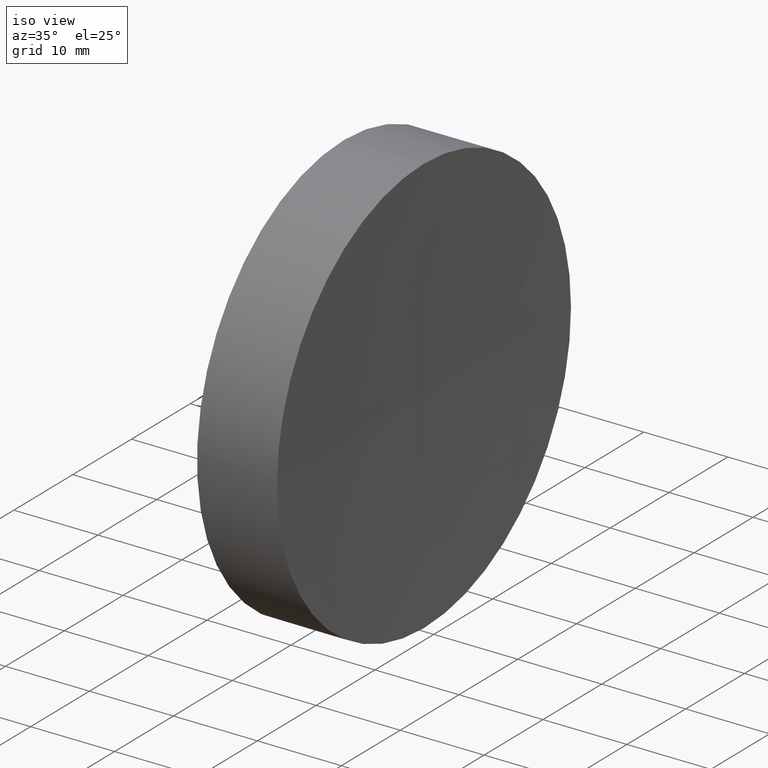
[diagram: clean part render]
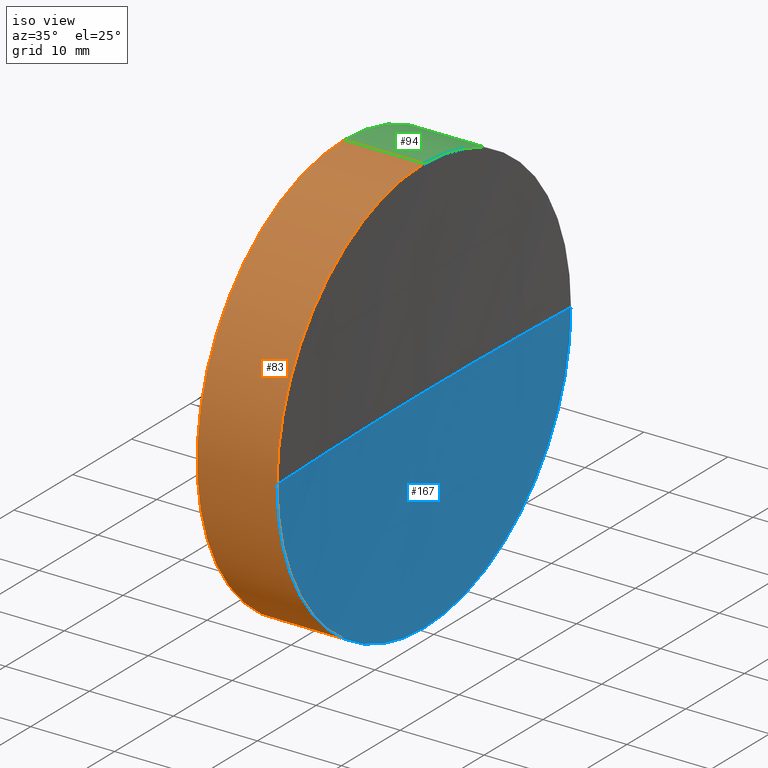
[diagram: same view with three faces highlighted in distinct colors, each labeled with its STEP entity id]
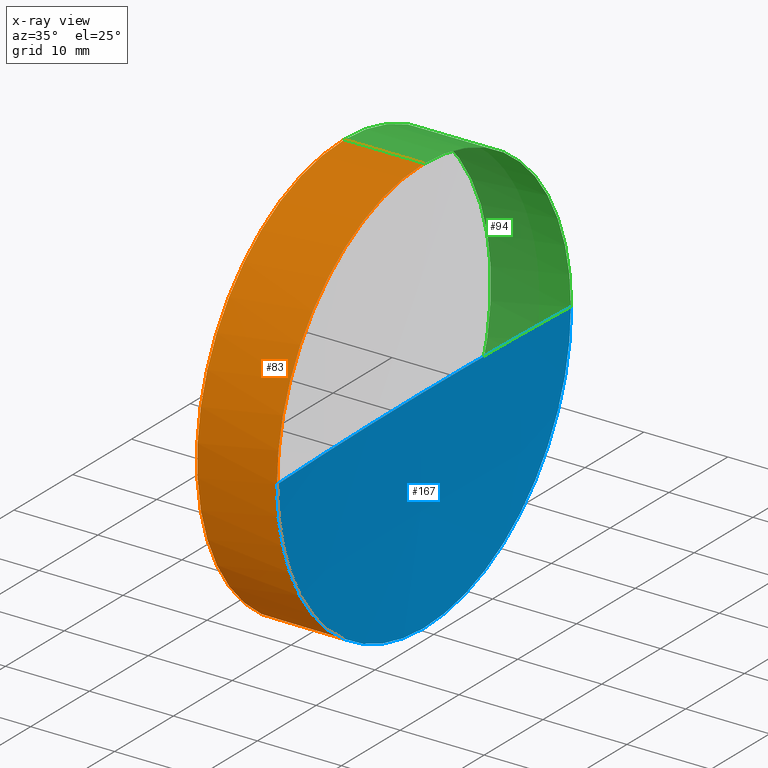
[diagram: x-ray of the same camera — body ghosted, the three highlighted faces saturated]
A machine part, iso view with three faces highlighted in distinct colors.
The next image is the same camera in x-ray (body ghosted, the three faces saturated) — at least one of them is partly hidden behind the body in this view.
Their STEP definitions:

[orange] entity #83 — the highlighted cylindrical surface (partial cylindrical patch) has radius 25 mm, axis along (-1, -0, -0).
#2 = CARTESIAN_POINT ( 'NONE',  ( 217.9702860043302100, 138.7560422467448700, 24.99999999999999300 ) ) ;
#8 = AXIS2_PLACEMENT_3D ( 'NONE', #99, #114, #171 ) ;
#11 = EDGE_CURVE ( 'NONE', #30, #183, #135, .T. ) ;
#14 = DIRECTION ( 'NONE',  ( 0.0000000000000000000, 0.0000000000000000000, 1.000000000000000000 ) ) ;
#15 = CARTESIAN_POINT ( 'NONE',  ( 239.7063708809449700, 138.7560422467448700, -24.99999999999999300 ) ) ;
#21 = EDGE_CURVE ( 'NONE', #30, #175, #52, .T. ) ;
#25 = EDGE_CURVE ( 'NONE', #38, #122, #73, .T. ) ;
#28 = DIRECTION ( 'NONE',  ( -1.000000000000000000, -0.0000000000000000000, -0.0000000000000000000 ) ) ;
#30 = VERTEX_POINT ( 'NONE', #15 ) ;
#34 = VECTOR ( 'NONE', #185, 1000.000000000000000 ) ;
#38 = VERTEX_POINT ( 'NONE', #115 ) ;
#41 = DIRECTION ( 'NONE',  ( 0.0000000000000000000, 0.0000000000000000000, 1.000000000000000000 ) ) ;
#52 = CIRCLE ( 'NONE', #75, 24.99999999999999300 ) ;
#54 = ORIENTED_EDGE ( 'NONE', *, *, #21, .T. ) ;
#59 = ORIENTED_EDGE ( 'NONE', *, *, #11, .F. ) ;
#60 = FACE_OUTER_BOUND ( 'NONE', #113, .T. ) ;
#62 = ORIENTED_EDGE ( 'NONE', *, *, #104, .F. ) ;
#63 = DIRECTION ( 'NONE',  ( -1.000000000000000000, -0.0000000000000000000, -0.0000000000000000000 ) ) ;
#66 = DIRECTION ( 'NONE',  ( -1.000000000000000000, -0.0000000000000000000, -0.0000000000000000000 ) ) ;
#69 = CARTESIAN_POINT ( 'NONE',  ( 239.7063708809449700, 138.7560422467448700, 0.0000000000000000000 ) ) ;
#73 = LINE ( 'NONE', #2, #34 ) ;
#75 = AXIS2_PLACEMENT_3D ( 'NONE', #137, #63, #41 ) ;
#83 = ADVANCED_FACE ( 'NONE', ( #60 ), #105, .T. ) ;
#85 = CARTESIAN_POINT ( 'NONE',  ( 230.1853110698390300, 138.7560422467448700, 24.99999999999999300 ) ) ;
#86 = ORIENTED_EDGE ( 'NONE', *, *, #134, .T. ) ;
#93 = VECTOR ( 'NONE', #66, 1000.000000000000000 ) ;
#98 = CARTESIAN_POINT ( 'NONE',  ( 230.1853110698390300, 138.7560422467448700, 0.0000000000000000000 ) ) ;
#99 = CARTESIAN_POINT ( 'NONE',  ( 217.9702860043302100, 138.7560422467448700, 0.0000000000000000000 ) ) ;
#104 = EDGE_CURVE ( 'NONE', #183, #122, #108, .T. ) ;
#105 = CYLINDRICAL_SURFACE ( 'NONE', #8, 24.99999999999999300 ) ;
#108 = CIRCLE ( 'NONE', #184, 24.99999999999999300 ) ;
#113 = EDGE_LOOP ( 'NONE', ( #59, #54, #86, #144, #62 ) ) ;
#114 = DIRECTION ( 'NONE',  ( -1.000000000000000000, -0.0000000000000000000, -0.0000000000000000000 ) ) ;
#115 = CARTESIAN_POINT ( 'NONE',  ( 239.7063708809449700, 138.7560422467448700, 24.99999999999999300 ) ) ;
#119 = CARTESIAN_POINT ( 'NONE',  ( 230.1853110698390300, 138.7560422467448700, -24.99999999999999300 ) ) ;
#122 = VERTEX_POINT ( 'NONE', #85 ) ;
#124 = CARTESIAN_POINT ( 'NONE',  ( 217.9702860043302100, 138.7560422467448700, -24.99999999999999300 ) ) ;
#128 = CARTESIAN_POINT ( 'NONE',  ( 239.7063708809450000, 113.7560422467444600, 0.0000000000000000000 ) ) ;
#134 = EDGE_CURVE ( 'NONE', #175, #38, #164, .T. ) ;
#135 = LINE ( 'NONE', #124, #93 ) ;
#137 = CARTESIAN_POINT ( 'NONE',  ( 239.7063708809449700, 138.7560422467448700, 0.0000000000000000000 ) ) ;
#141 = DIRECTION ( 'NONE',  ( -1.000000000000000000, -0.0000000000000000000, -0.0000000000000000000 ) ) ;
#144 = ORIENTED_EDGE ( 'NONE', *, *, #25, .T. ) ;
#164 = CIRCLE ( 'NONE', #166, 24.99999999999999300 ) ;
#166 = AXIS2_PLACEMENT_3D ( 'NONE', #69, #28, #172 ) ;
#171 = DIRECTION ( 'NONE',  ( 0.0000000000000000000, 0.0000000000000000000, 1.000000000000000000 ) ) ;
#172 = DIRECTION ( 'NONE',  ( 0.0000000000000000000, 0.0000000000000000000, 1.000000000000000000 ) ) ;
#175 = VERTEX_POINT ( 'NONE', #128 ) ;
#183 = VERTEX_POINT ( 'NONE', #119 ) ;
#184 = AXIS2_PLACEMENT_3D ( 'NONE', #98, #141, #14 ) ;
#185 = DIRECTION ( 'NONE',  ( -1.000000000000000000, -0.0000000000000000000, -0.0000000000000000000 ) ) ;

[blue] entity #167 — the highlighted spherical surface has radius 600 mm.
#5 = DIRECTION ( 'NONE',  ( 0.0000000000000000000, 0.0000000000000000000, 1.000000000000000000 ) ) ;
#7 = VERTEX_POINT ( 'NONE', #169 ) ;
#9 = SPHERICAL_SURFACE ( 'NONE', #61, 600.0000000000000000 ) ;
#15 = CARTESIAN_POINT ( 'NONE',  ( 239.7063708809449700, 138.7560422467448700, -24.99999999999999300 ) ) ;
#21 = EDGE_CURVE ( 'NONE', #30, #175, #52, .T. ) ;
#22 = EDGE_LOOP ( 'NONE', ( #117, #68, #110, #125 ) ) ;
#23 = VERTEX_POINT ( 'NONE', #155 ) ;
#30 = VERTEX_POINT ( 'NONE', #15 ) ;
#41 = DIRECTION ( 'NONE',  ( 0.0000000000000000000, 0.0000000000000000000, 1.000000000000000000 ) ) ;
#43 = DIRECTION ( 'NONE',  ( 0.0000000000000000000, 0.0000000000000000000, -1.000000000000000000 ) ) ;
#48 = CARTESIAN_POINT ( 'NONE',  ( 839.1853112950349200, 138.7560422467449000, 0.0000000000000000000 ) ) ;
#52 = CIRCLE ( 'NONE', #75, 24.99999999999999300 ) ;
#61 = AXIS2_PLACEMENT_3D ( 'NONE', #178, #5, #157 ) ;
#63 = DIRECTION ( 'NONE',  ( -1.000000000000000000, -0.0000000000000000000, -0.0000000000000000000 ) ) ;
#68 = ORIENTED_EDGE ( 'NONE', *, *, #179, .T. ) ;
#75 = AXIS2_PLACEMENT_3D ( 'NONE', #137, #63, #41 ) ;
#77 = CIRCLE ( 'NONE', #162, 600.0000000000000000 ) ;
#80 = FACE_OUTER_BOUND ( 'NONE', #22, .T. ) ;
#90 = DIRECTION ( 'NONE',  ( 0.0000000000000000000, -1.224646799147353200E-016, 1.000000000000000000 ) ) ;
#101 = DIRECTION ( 'NONE',  ( -1.000000000000000000, -0.0000000000000000000, -0.0000000000000000000 ) ) ;
#103 = DIRECTION ( 'NONE',  ( 0.0000000000000000000, 0.0000000000000000000, 1.000000000000000000 ) ) ;
#106 = AXIS2_PLACEMENT_3D ( 'NONE', #48, #43, #147 ) ;
#110 = ORIENTED_EDGE ( 'NONE', *, *, #152, .F. ) ;
#116 = CARTESIAN_POINT ( 'NONE',  ( 839.1853112950349200, 138.7560422467449000, 0.0000000000000000000 ) ) ;
#117 = ORIENTED_EDGE ( 'NONE', *, *, #150, .F. ) ;
#125 = ORIENTED_EDGE ( 'NONE', *, *, #21, .F. ) ;
#128 = CARTESIAN_POINT ( 'NONE',  ( 239.7063708809450000, 113.7560422467444600, 0.0000000000000000000 ) ) ;
#130 = DIRECTION ( 'NONE',  ( 0.0000000000000000000, -1.000000000000000000, -1.224646799147353200E-016 ) ) ;
#136 = CIRCLE ( 'NONE', #106, 600.0000000000000000 ) ;
#137 = CARTESIAN_POINT ( 'NONE',  ( 239.7063708809449700, 138.7560422467448700, 0.0000000000000000000 ) ) ;
#147 = DIRECTION ( 'NONE',  ( -1.000000000000000000, 0.0000000000000000000, 0.0000000000000000000 ) ) ;
#150 = EDGE_CURVE ( 'NONE', #7, #30, #156, .T. ) ;
#152 = EDGE_CURVE ( 'NONE', #175, #23, #136, .T. ) ;
#155 = CARTESIAN_POINT ( 'NONE',  ( 239.1853112950349500, 138.7560422467448700, 0.0000000000000000000 ) ) ;
#156 = CIRCLE ( 'NONE', #173, 24.99999999999999300 ) ;
#157 = DIRECTION ( 'NONE',  ( 0.0000000000000000000, -1.000000000000000000, 0.0000000000000000000 ) ) ;
#162 = AXIS2_PLACEMENT_3D ( 'NONE', #116, #90, #130 ) ;
#167 = ADVANCED_FACE ( 'NONE', ( #80 ), #9, .F. ) ;
#169 = CARTESIAN_POINT ( 'NONE',  ( 239.7063708809450000, 163.7560422467453000, 3.061616997868432700E-015 ) ) ;
#173 = AXIS2_PLACEMENT_3D ( 'NONE', #176, #101, #103 ) ;
#175 = VERTEX_POINT ( 'NONE', #128 ) ;
#176 = CARTESIAN_POINT ( 'NONE',  ( 239.7063708809449700, 138.7560422467448700, 0.0000000000000000000 ) ) ;
#178 = CARTESIAN_POINT ( 'NONE',  ( 839.1853112950349200, 138.7560422467449000, 0.0000000000000000000 ) ) ;
#179 = EDGE_CURVE ( 'NONE', #7, #23, #77, .T. ) ;

[green] entity #94 — the highlighted cylindrical surface (partial cylindrical patch) has radius 25 mm, axis along (-1, -0, -0).
#2 = CARTESIAN_POINT ( 'NONE',  ( 217.9702860043302100, 138.7560422467448700, 24.99999999999999300 ) ) ;
#7 = VERTEX_POINT ( 'NONE', #169 ) ;
#11 = EDGE_CURVE ( 'NONE', #30, #183, #135, .T. ) ;
#15 = CARTESIAN_POINT ( 'NONE',  ( 239.7063708809449700, 138.7560422467448700, -24.99999999999999300 ) ) ;
#17 = AXIS2_PLACEMENT_3D ( 'NONE', #26, #39, #87 ) ;
#24 = CARTESIAN_POINT ( 'NONE',  ( 217.9702860043302100, 138.7560422467448700, 0.0000000000000000000 ) ) ;
#25 = EDGE_CURVE ( 'NONE', #38, #122, #73, .T. ) ;
#26 = CARTESIAN_POINT ( 'NONE',  ( 239.7063708809449700, 138.7560422467448700, 0.0000000000000000000 ) ) ;
#27 = AXIS2_PLACEMENT_3D ( 'NONE', #24, #65, #139 ) ;
#30 = VERTEX_POINT ( 'NONE', #15 ) ;
#33 = EDGE_CURVE ( 'NONE', #38, #7, #79, .T. ) ;
#34 = VECTOR ( 'NONE', #185, 1000.000000000000000 ) ;
#38 = VERTEX_POINT ( 'NONE', #115 ) ;
#39 = DIRECTION ( 'NONE',  ( -1.000000000000000000, -0.0000000000000000000, -0.0000000000000000000 ) ) ;
#47 = AXIS2_PLACEMENT_3D ( 'NONE', #81, #112, #92 ) ;
#49 = ORIENTED_EDGE ( 'NONE', *, *, #126, .F. ) ;
#64 = CYLINDRICAL_SURFACE ( 'NONE', #27, 24.99999999999999300 ) ;
#65 = DIRECTION ( 'NONE',  ( -1.000000000000000000, -0.0000000000000000000, -0.0000000000000000000 ) ) ;
#66 = DIRECTION ( 'NONE',  ( -1.000000000000000000, -0.0000000000000000000, -0.0000000000000000000 ) ) ;
#73 = LINE ( 'NONE', #2, #34 ) ;
#79 = CIRCLE ( 'NONE', #17, 24.99999999999999300 ) ;
#81 = CARTESIAN_POINT ( 'NONE',  ( 230.1853110698390300, 138.7560422467448700, 0.0000000000000000000 ) ) ;
#85 = CARTESIAN_POINT ( 'NONE',  ( 230.1853110698390300, 138.7560422467448700, 24.99999999999999300 ) ) ;
#87 = DIRECTION ( 'NONE',  ( 0.0000000000000000000, 0.0000000000000000000, 1.000000000000000000 ) ) ;
#92 = DIRECTION ( 'NONE',  ( 0.0000000000000000000, 0.0000000000000000000, 1.000000000000000000 ) ) ;
#93 = VECTOR ( 'NONE', #66, 1000.000000000000000 ) ;
#94 = ADVANCED_FACE ( 'NONE', ( #154 ), #64, .T. ) ;
#101 = DIRECTION ( 'NONE',  ( -1.000000000000000000, -0.0000000000000000000, -0.0000000000000000000 ) ) ;
#103 = DIRECTION ( 'NONE',  ( 0.0000000000000000000, 0.0000000000000000000, 1.000000000000000000 ) ) ;
#107 = ORIENTED_EDGE ( 'NONE', *, *, #11, .T. ) ;
#112 = DIRECTION ( 'NONE',  ( -1.000000000000000000, -0.0000000000000000000, -0.0000000000000000000 ) ) ;
#115 = CARTESIAN_POINT ( 'NONE',  ( 239.7063708809449700, 138.7560422467448700, 24.99999999999999300 ) ) ;
#119 = CARTESIAN_POINT ( 'NONE',  ( 230.1853110698390300, 138.7560422467448700, -24.99999999999999300 ) ) ;
#122 = VERTEX_POINT ( 'NONE', #85 ) ;
#124 = CARTESIAN_POINT ( 'NONE',  ( 217.9702860043302100, 138.7560422467448700, -24.99999999999999300 ) ) ;
#126 = EDGE_CURVE ( 'NONE', #122, #183, #181, .T. ) ;
#132 = ORIENTED_EDGE ( 'NONE', *, *, #25, .F. ) ;
#135 = LINE ( 'NONE', #124, #93 ) ;
#139 = DIRECTION ( 'NONE',  ( 0.0000000000000000000, 0.0000000000000000000, 1.000000000000000000 ) ) ;
#140 = ORIENTED_EDGE ( 'NONE', *, *, #33, .T. ) ;
#150 = EDGE_CURVE ( 'NONE', #7, #30, #156, .T. ) ;
#151 = EDGE_LOOP ( 'NONE', ( #163, #107, #49, #132, #140 ) ) ;
#154 = FACE_OUTER_BOUND ( 'NONE', #151, .T. ) ;
#156 = CIRCLE ( 'NONE', #173, 24.99999999999999300 ) ;
#163 = ORIENTED_EDGE ( 'NONE', *, *, #150, .T. ) ;
#169 = CARTESIAN_POINT ( 'NONE',  ( 239.7063708809450000, 163.7560422467453000, 3.061616997868432700E-015 ) ) ;
#173 = AXIS2_PLACEMENT_3D ( 'NONE', #176, #101, #103 ) ;
#176 = CARTESIAN_POINT ( 'NONE',  ( 239.7063708809449700, 138.7560422467448700, 0.0000000000000000000 ) ) ;
#181 = CIRCLE ( 'NONE', #47, 24.99999999999999300 ) ;
#183 = VERTEX_POINT ( 'NONE', #119 ) ;
#185 = DIRECTION ( 'NONE',  ( -1.000000000000000000, -0.0000000000000000000, -0.0000000000000000000 ) ) ;